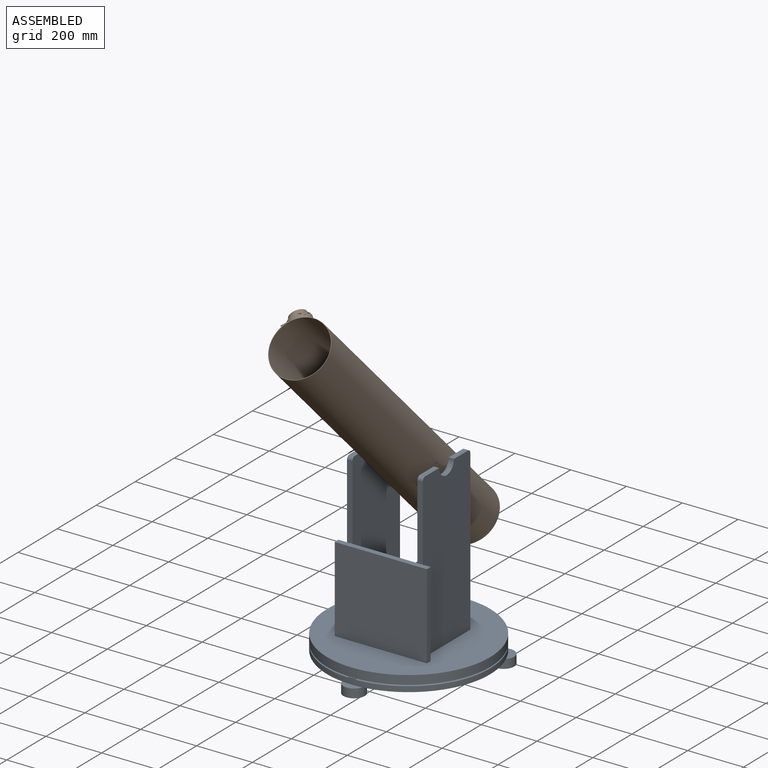
[diagram: assembled view]
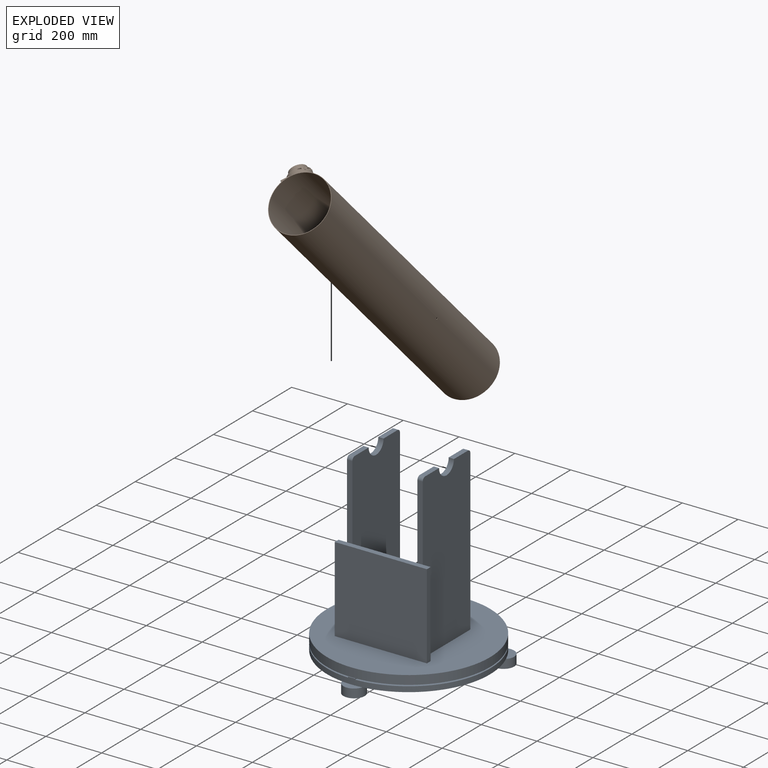
[diagram: exploded view]
GUIDED TOUR — FREECAD ASSEMBLY "SMAS_DOB_6inch"

This assembly has 2 components, labeled P0..P1 below (a component is one placed body or linked part; the same part can appear more than once), held together by 0 modeled joints plus 1 derived contact edge. A joint is a constraint between two components; its type names the relative motion it leaves free:
  CONTACT — a derived adjacency edge — the two components touch in the source model (clearance under 2% of the assembly's diagonal); it is measured from the geometry, not a modeled constraint.
Axis/direction vectors are unit vectors and 'through' points are millimeter coordinates, both in the assembly's world frame.

MATES
  1. CONTACT "contact_0_1": P0 <-> P1, contact direction (0.000, 0.000, 1.000) through (109.08, -0.51, 615.84) mm (derived from contact, not a modeled constraint)

ASSEMBLY ORDER
  1. P0 — the base component [order verified]
  2. P1 [order verified]
Order-tag legend:
  [order verified] — this step's position reverses a verified removal order: the component was checked to insert without passing through the ones already placed.

Of the 2 components, 2 carry a construction recipe — the FreeCAD feature program (sketches with constraints, then the solid features that consume them) that regenerates the part from scratch, quoted from this document or from the linked companion document it references; the rest are supplied as boundary geometry only. The tour below walks the components in assembly order: each is shown spotlighted twice — in the assembled view, then in the exploded view, where a leader line traces a displaced component back to its assembled socket (components that stay in place when exploded have no leader line; saturated green if recipe-attached, orange if geometry-only; every other component desaturated gray) — followed by its recipe or geometry summary and the mates that hold it.
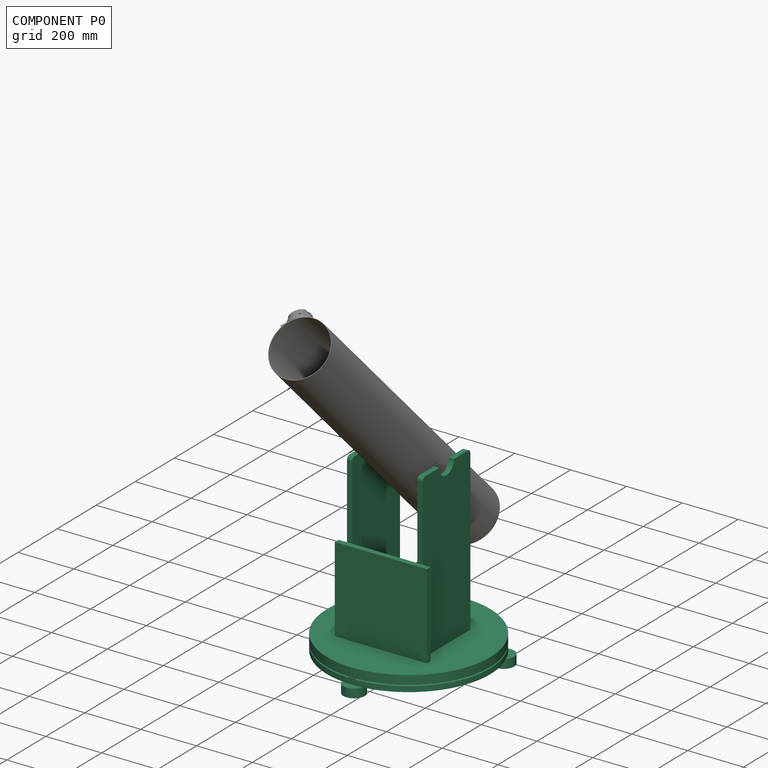
[diagram: component P0 — assembled]
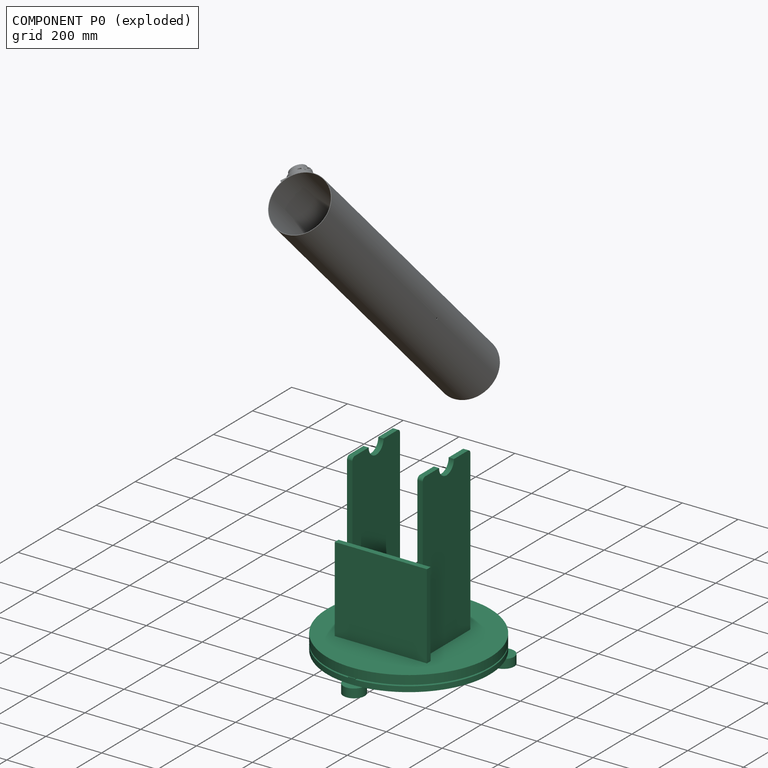
[diagram: component P0 — exploded]
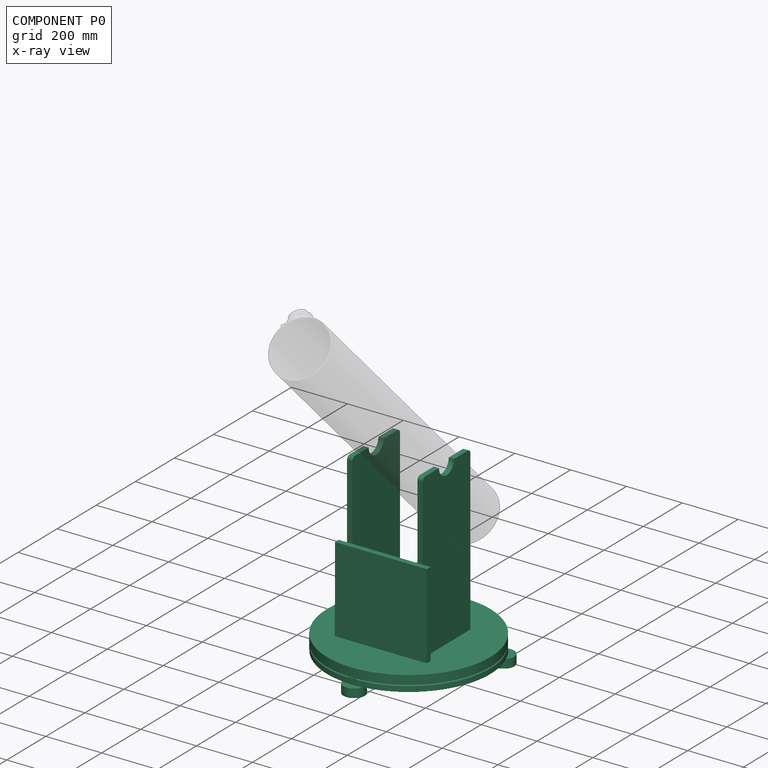
[diagram: component P0 — x-ray view]
COMPONENT P0 — recipe-attached ("Part_Base001", modeled in this document).
Held by: resting contact with P1 (derived edge).
Construction recipe (the document's own serialized feature program — sketch geometry with constraints, then the solid features built on it; lengths are millimeters unless a unit is written):

FEATURE [Sketcher::SketchObject] Sketch003
  ArcFitTolerance = 1e-06
  AttachmentSupport = -> [XY_Plane006]
  FullyConstrained = true
  MakeInternals = false
  MapMode = 5
  expr: Constraints[1] = <<Spreadsheet_OTA_Dob>>.GroundBoardDiameter
  expr: Constraints[3] = <<Spreadsheet_OTA_Dob>>.CenterHoleDiameter
  sketch-geometry (2):
    g0: Circle CenterX=0 CenterY=0 CenterZ=0 NormalX=0 NormalY=0 NormalZ=1 AngleXU=0 Radius=292.1
    g1: Circle CenterX=0 CenterY=0 CenterZ=0 NormalX=0 NormalY=0 NormalZ=1 AngleXU=0 Radius=6.35
  constraints (4):
    c: Coincident(g0,g-1)
    c: Diameter(g0) = 584.2
    c: Coincident(g1,g0)
    c: Diameter(g1) = 12.7
FEATURE [PartDesign::Pad] Pad003  label="PadGroundBoard"
  Direction = (0,0,1)
  Length = 19.05
  Length2 = 10
  Profile = -> Sketch003
  ReferenceAxis = -> Sketch003 [N_Axis]
  Suppressed = false
  Type = 0
  expr: Length = <<Spreadsheet_OTA_Dob>>.GroundBoardThickness
FEATURE [Sketcher::SketchObject] Sketch004
  ArcFitTolerance = 1e-06
  AttachmentSupport = -> [Pad003]
  FullyConstrained = true
  MakeInternals = false
  MapMode = 5
  Placement = pos=(0,0,0) rot=(1,0,0;3.14159rad)
  expr: Constraints[14] = <<Spreadsheet_OTA_Dob>>.FeetDiamter
  expr: Constraints[9] = Spreadsheet.FeetCircleDiamater
  sketch-geometry (7):
    g0: LineSegment [constr] StartX=-241.967 StartY=-139.7 StartZ=0 EndX=241.967 EndY=-139.7 EndZ=0
    g1: LineSegment [constr] StartX=241.967 StartY=-139.7 StartZ=0 EndX=0 EndY=279.4 EndZ=0
    g2: LineSegment [constr] StartX=0 StartY=279.4 StartZ=0 EndX=-241.967 EndY=-139.7 EndZ=0
    g3: Circle [constr] CenterX=0 CenterY=0 CenterZ=0 NormalX=0 NormalY=0 NormalZ=1 AngleXU=0 Radius=279.4
    g4: Circle CenterX=0 CenterY=279.4 CenterZ=0 NormalX=0 NormalY=0 NormalZ=1 AngleXU=0 Radius=38.1
    g5: Circle CenterX=241.967 CenterY=-139.7 CenterZ=0 NormalX=0 NormalY=0 NormalZ=1 AngleXU=0 Radius=38.1
    g6: Circle CenterX=-241.967 CenterY=-139.7 CenterZ=0 NormalX=0 NormalY=0 NormalZ=1 AngleXU=0 Radius=38.1
  constraints (17):
    c: Coincident(g0,g1)
    c: Coincident(g1,g2)
    c: Coincident(g2,g0)
    c: Equal(g0,g1)
    c: Equal(g0,g2)
    c: PointOnObject(g0,g3)
    c: PointOnObject(g1,g3)
    c: PointOnObject(g2,g3)
    c: Coincident(g3,g-1)
    c: Diameter(g3) = 558.8
    c: Horizontal(g0)
    c: Coincident(g4,g1)
    c: Coincident(g5,g0)
    c: Coincident(g6,g0)
    c: Diameter(g4) = 76.2
    c: Equal(g4,g6)
    c: Equal(g6,g5)
FEATURE [PartDesign::Pad] Pad004  label="PadFeet"
  BaseFeature = -> Pad003
  Direction = (0,0,-1)
  Length = 31.75
  Length2 = 10
  Profile = -> Sketch004
  ReferenceAxis = -> Sketch004 [N_Axis]
  Suppressed = false
  Type = 0
  expr: Length = <<Spreadsheet_OTA_Dob>>.FeetThickness
FEATURE [Sketcher::SketchObject] Sketch005
  ArcFitTolerance = 1e-06
  AttachmentSupport = -> [Pad004]
  FullyConstrained = true
  MakeInternals = false
  MapMode = 5
  Placement = pos=(0,0,19.05) rot=(0,0,1;0rad)
  expr: Constraints[52] = <<Spreadsheet_OTA_Dob>>.FeetCircleDiamater
  sketch-geometry (19):
    g0: LineSegment [constr] StartX=241.967 StartY=139.7 StartZ=0 EndX=-241.967 EndY=139.7 EndZ=0
    g1: LineSegment [constr] StartX=-241.967 StartY=139.7 StartZ=0 EndX=-2.84e-14 EndY=-279.4 EndZ=0
    g2: LineSegment [constr] StartX=-3.84e-14 StartY=-279.4 StartZ=0 EndX=241.967 EndY=139.7 EndZ=0
    g3: Circle [constr] CenterX=0 CenterY=0 CenterZ=0 NormalX=0 NormalY=0 NormalZ=1 AngleXU=0 Radius=279.4
    g4: LineSegment StartX=-237.319 StartY=122.351 StartZ=0 EndX=-224.619 EndY=144.349 EndZ=0
    g5: LineSegment StartX=-224.619 StartY=144.349 StartZ=0 EndX=-246.616 EndY=157.049 EndZ=0
    g6: LineSegment StartX=-246.616 StartY=157.049 StartZ=0 EndX=-259.316 EndY=135.051 EndZ=0
    g7: LineSegment StartX=-259.316 StartY=135.051 StartZ=0 EndX=-237.319 EndY=122.351 EndZ=0
    g8: Circle [constr] CenterX=-241.967 CenterY=139.7 CenterZ=0 NormalX=0 NormalY=0 NormalZ=1 AngleXU=0 Radius=17.9605
    g9: LineSegment StartX=237.319 StartY=122.351 StartZ=0 EndX=259.316 EndY=135.051 EndZ=0
    g10: LineSegment StartX=259.316 StartY=135.051 StartZ=0 EndX=246.616 EndY=157.049 EndZ=0
    g11: LineSegment StartX=246.616 StartY=157.049 StartZ=0 EndX=224.619 EndY=144.349 EndZ=0
    g12: LineSegment StartX=224.619 StartY=144.349 StartZ=0 EndX=237.319 EndY=122.351 EndZ=0
    g13: Circle [constr] CenterX=241.967 CenterY=139.7 CenterZ=0 NormalX=0 NormalY=0 NormalZ=1 AngleXU=0 Radius=17.9605
    g14: LineSegment StartX=12.7 StartY=-292.1 StartZ=0 EndX=12.7 EndY=-266.7 EndZ=0
    g15: LineSegment StartX=12.7 StartY=-266.7 StartZ=0 EndX=-12.7 EndY=-266.7 EndZ=0
    g16: LineSegment StartX=-12.7 StartY=-266.7 StartZ=0 EndX=-12.7 EndY=-292.1 EndZ=0
    g17: LineSegment StartX=-12.7 StartY=-292.1 StartZ=0 EndX=12.7 EndY=-292.1 EndZ=0
    g18: Circle [constr] CenterX=-3.84e-14 CenterY=-279.4 CenterZ=0 NormalX=0 NormalY=0 NormalZ=1 AngleXU=0 Radius=17.9605
  constraints (53):
    c: Coincident(g0,g1)
    c: Coincident(g1,g2)
    c: Coincident(g2,g0)
    c: Equal(g0,g1)
    c: Equal(g0,g2)
    c: PointOnObject(g0,g3)
    c: PointOnObject(g1,g3)
    c: PointOnObject(g2,g3)
    c: Coincident(g3,g-1)
    c: Horizontal(g0)
    c: Coincident(g4,g5)
    c: Coincident(g5,g6)
    c: Coincident(g6,g7)
    c: Coincident(g7,g4)
    c: Equal(g4,g5)
    c: Equal(g4,g6)
    c: Equal(g4,g7)
    c: PointOnObject(g4,g8)
    c: PointOnObject(g5,g8)
    c: PointOnObject(g6,g8)
    c: PointOnObject(g7,g8)
    c: Coincident(g8,g0)
    c: Coincident(g9,g10)
    c: Coincident(g10,g11)
    c: Coincident(g11,g12)
    c: Coincident(g12,g9)
    c: Equal(g9,g10)
    c: Equal(g9,g11)
    c: Equal(g9,g12)
    c: PointOnObject(g9,g13)
    c: PointOnObject(g10,g13)
    c: PointOnObject(g11,g13)
    c: PointOnObject(g12,g13)
    c: Coincident(g13,g0)
    c: Coincident(g14,g15)
    c: Coincident(g15,g16)
    c: Coincident(g16,g17)
    c: Coincident(g17,g14)
    c: Equal(g14,g15)
    c: Equal(g14,g16)
    c: Equal(g14,g17)
    c: PointOnObject(g14,g18)
    c: PointOnObject(g15,g18)
    c: PointOnObject(g16,g18)
    c: PointOnObject(g17,g18)
    c: Coincident(g18,g1)
    c: Horizontal(g15)
    c: Angle(g12) = -1.0472
    c: Angle(g4) = 1.0472
    c: Equal(g6,g10)
    c: Equal(g10,g17)
    c: DistanceX(g17,g17) = 25.4
    c: Diameter(g3) = 558.8
FEATURE [PartDesign::Pad] Pad005  label="PadTeflonFeet"
  BaseFeature = -> Pad004
  Direction = (0,0,1)
  Length = 3.175
  Length2 = 10
  Profile = -> Sketch005
  ReferenceAxis = -> Sketch005 [N_Axis]
  Suppressed = false
  Type = 0
FEATURE [PartDesign::Body] Body003  label="Body_GroundBoard"
  AllowCompound = false
  Group = -> [Sketch003,Pad003,Sketch004,Pad004,Sketch005,Pad005]
  Origin = -> Origin006
  Tip = -> Pad005
FEATURE [Sketcher::SketchObject] Sketch006
  ArcFitTolerance = 1e-06
  AttachmentSupport = -> [XY_Plane007]
  FullyConstrained = true
  MakeInternals = false
  MapMode = 5
  expr: Constraints[1] = <<Spreadsheet_OTA_Dob>>.RockerBottomDiamter
  expr: Constraints[3] = <<Spreadsheet_OTA_Dob>>.CenterHoleDiameter
  sketch-geometry (2):
    g0: Circle CenterX=0 CenterY=0 CenterZ=0 NormalX=0 NormalY=0 NormalZ=1 AngleXU=0 Radius=292.1
    g1: Circle CenterX=0 CenterY=0 CenterZ=0 NormalX=0 NormalY=0 NormalZ=1 AngleXU=0 Radius=6.35
  constraints (4):
    c: Coincident(g0,g-1)
    c: Diameter(g0) = 584.2
    c: Coincident(g1,g0)
    c: Diameter(g1) = 12.7
FEATURE [PartDesign::Pad] Pad006  label="Pad_RockerBottom"
  Direction = (0,0,1)
  Length = 31.75
  Length2 = 10
  Profile = -> Sketch006
  ReferenceAxis = -> Sketch006 [N_Axis]
  Suppressed = false
  Type = 0
  expr: Length = <<Spreadsheet_OTA_Dob>>.RockerBottomThickness
FEATURE [PartDesign::Body] Body004  label="Body_RockerBottom"
  AllowCompound = false
  Group = -> [Sketch006,Pad006]
  Origin = -> Origin007
  Placement = pos=(0,0,23.622) rot=(0,0,1;0rad)
  Tip = -> Pad006
FEATURE [Sketcher::SketchObject] Sketch007
  ArcFitTolerance = 1e-06
  AttachmentSupport = -> [YZ_Plane008]
  FullyConstrained = false
  MakeInternals = false
  MapMode = 5
  Placement = pos=(0,0,0) rot=(0.57735,0.57735,0.57735;2.0944rad)
  expr: Constraints[14] = <<Spreadsheet_OTA_Dob>>.RockerSideHeight
  expr: Constraints[15] = <<Spreadsheet_OTA_Dob>>.RockerSideWidth
  expr: Constraints[16] = <<Spreadsheet_OTA_Dob>>.AltitudeBeringCradelDiamter
  sketch-geometry (6):
    g0: LineSegment StartX=-121.92 StartY=563.165 StartZ=0 EndX=-121.92 EndY=-21.0347 EndZ=0
    g1: LineSegment StartX=-121.92 StartY=-21.0347 StartZ=0 EndX=121.92 EndY=-21.0347 EndZ=0
    g2: LineSegment StartX=121.92 StartY=-21.0347 StartZ=0 EndX=121.92 EndY=563.165 EndZ=0
    g3: LineSegment StartX=121.92 StartY=563.165 StartZ=0 EndX=38.1 EndY=563.165 EndZ=0
    g4: ArcOfCircle CenterX=-1.7e-15 CenterY=563.165 CenterZ=0 NormalX=0 NormalY=0 NormalZ=1 AngleXU=0 Radius=38.1 StartAngle=3.14159 EndAngle=6.28319
    g5: LineSegment StartX=-38.1 StartY=563.165 StartZ=0 EndX=-121.92 EndY=563.165 EndZ=0
  constraints (17):
    c: Coincident(g0,g1)
    c: Coincident(g1,g2)
    c: Coincident(g2,g3)
    c: Coincident(g5,g0)
    c: Vertical(g0)
    c: Vertical(g2)
    c: Horizontal(g1)
    c: Symmetric(g2,g0,g-2)
    c: Symmetric(g3,g5,g4)
    c: PointOnObject(g4,g5)
    c: Coincident(g3,g4)
    c: PointOnObject(g5,g4)
    c: Equal(g5,g3)
    c: Horizontal(g5)
    c: DistanceY(g0,g0) = 584.2
    c: DistanceX(g1,g1) = 243.84
    c: Radius(g4) = 38.1
FEATURE [PartDesign::Pad] Pad007
  Direction = (1,0,0)
  Length = 19.05
  Length2 = 10
  Placement = pos=(0,0,0) rot=(1,1,1;2.0944rad)
  Profile = -> Sketch007
  ReferenceAxis = -> Sketch007 [N_Axis]
  Suppressed = false
  Type = 0
  expr: Length = <<Spreadsheet_OTA_Dob>>.RockerSideThickness
FEATURE [Sketcher::SketchObject] Sketch008
  ArcFitTolerance = 1e-06
  AttachmentSupport = -> [XZ_Plane010]
  FullyConstrained = false
  MakeInternals = false
  MapMode = 5
  Placement = pos=(0,0,0) rot=(1,0,0;1.5708rad)
  expr: Constraints[7] = <<Spreadsheet_OTA_Dob>>.RockerBoxFrontHeight
  expr: Constraints[8] = <<Spreadsheet_OTA_Dob>>.RockerBoxFrontWidth
  sketch-geometry (4):
    g0: LineSegment StartX=-165.1 StartY=369.173 StartZ=0 EndX=-165.1 EndY=64.3727 EndZ=0
    g1: LineSegment StartX=-165.1 StartY=64.3727 StartZ=0 EndX=165.1 EndY=64.3727 EndZ=0
    g2: LineSegment StartX=165.1 StartY=64.3727 StartZ=0 EndX=165.1 EndY=369.173 EndZ=0
    g3: LineSegment StartX=165.1 StartY=369.173 StartZ=0 EndX=-165.1 EndY=369.173 EndZ=0
  constraints (10):
    c: Coincident(g0,g1)
    c: Coincident(g1,g2)
    c: Coincident(g2,g3)
    c: Coincident(g3,g0)
    c: Vertical(g0)
    c: Vertical(g2)
    c: Horizontal(g1)
    c: DistanceY(g0,g0) = 304.8
    c: DistanceX(g3,g3) = 330.2
    c: Symmetric(g0,g2,g-2)
FEATURE [PartDesign::Pad] Pad008
  Direction = (0,-1,2e-16)
  Length = 19.05
  Length2 = 10
  Placement = pos=(0,0,0) rot=(1,0,0;1.5708rad)
  Profile = -> Sketch008
  ReferenceAxis = -> Sketch008 [N_Axis]
  Suppressed = false
  Type = 0
  expr: Length = <<Spreadsheet_OTA_Dob>>.RockerBoxFrontThickness
FEATURE [PartDesign::Body] Body007  label="Body_RockerBoxFront"
  AllowCompound = false
  Group = -> [Sketch008,Pad008]
  Origin = -> Origin010
  Placement = pos=(0,-123.444,-8.636) rot=(0,0,1;0rad)
  Tip = -> Pad008
FEATURE [PartDesign::Fillet] Fillet
  Base = -> Pad007 [Edge1,Edge8]
  BaseFeature = -> Pad007
  Placement = pos=(0,0,0) rot=(1,1,1;2.0944rad)
  Radius = 12.7
  SupportTransform = false
  Suppressed = false
  UseAllEdges = false
FEATURE [PartDesign::Body] Body005  label="Body_BaseLeftSide"
  AllowCompound = false
  Group = -> [Sketch007,Pad007,Fillet]
  Origin = -> Origin008
  Placement = pos=(-135.636,0,76.454) rot=(0,0,1;0rad)
  Tip = -> Fillet
FEATURE [PartDesign::FeatureBase] Clone
  BaseFeature = -> Body005
  Placement = pos=(161.798,0,0) rot=(0,0,1;0rad)
  Suppressed = false
FEATURE [PartDesign::Body] Body006  label="Body_BaseRightSide"
  AllowCompound = false
  Group = -> [Clone]
  Origin = -> Origin009
  Placement = pos=(-45.212,0,77.47) rot=(0,0,1;0rad)
  Tip = -> Clone
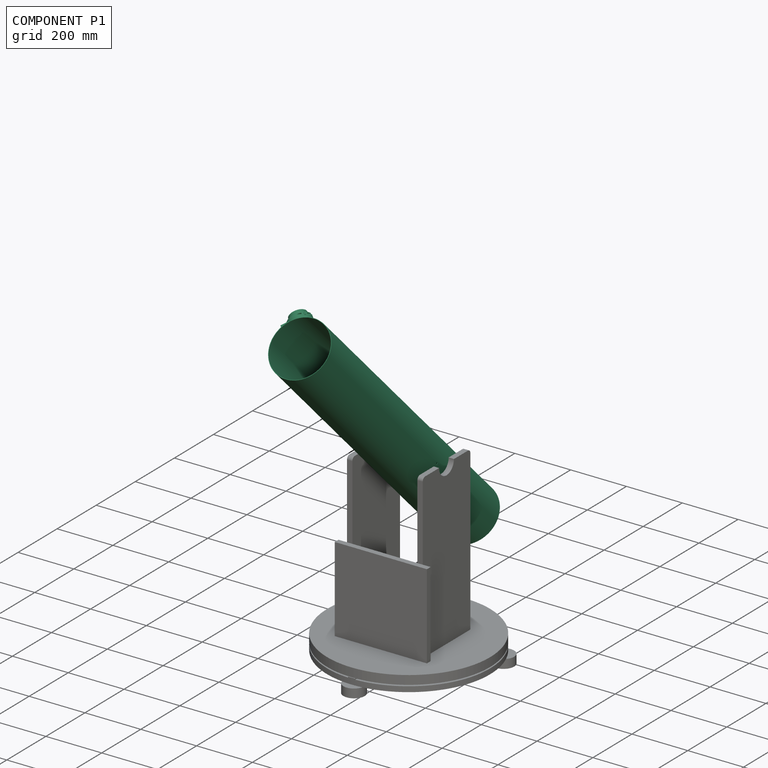
[diagram: component P1 — assembled]
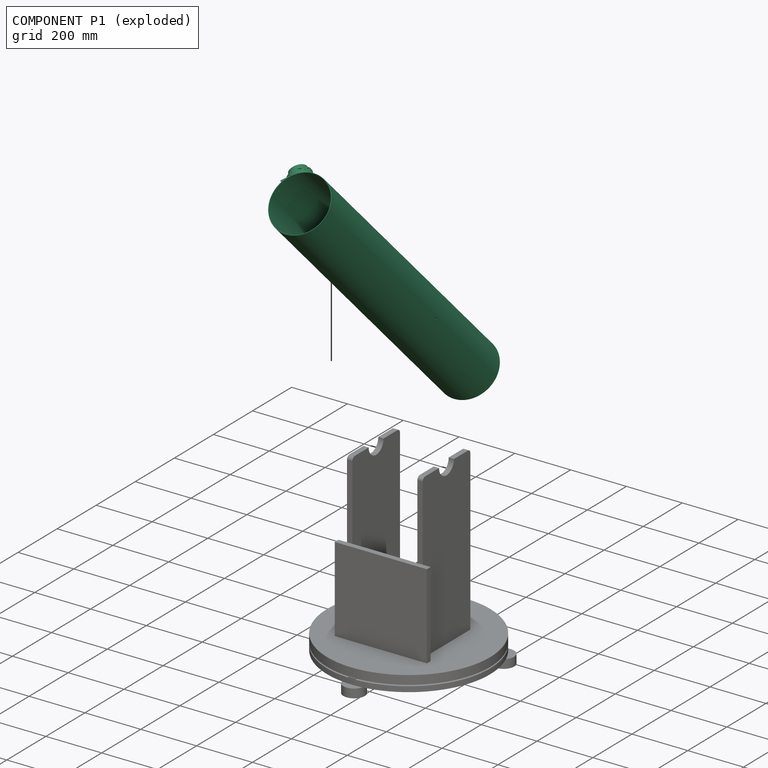
[diagram: component P1 — exploded]
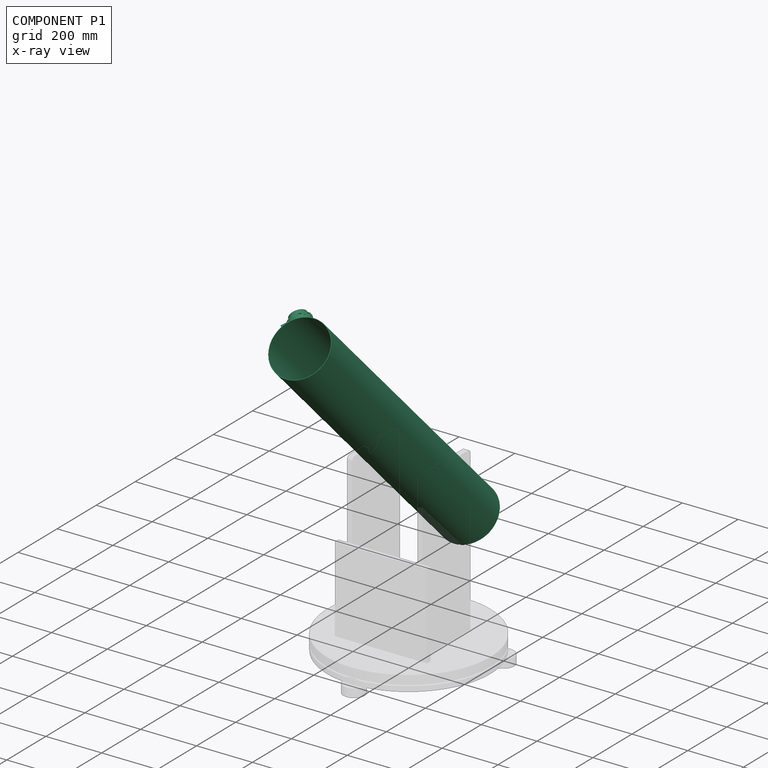
[diagram: component P1 — x-ray view]
COMPONENT P1 — recipe-attached ("Part_OTA_Dob001", modeled in this document).
Held by: resting contact with P0 (derived edge).
Construction recipe (the document's own serialized feature program — sketch geometry with constraints, then the solid features built on it; lengths are millimeters unless a unit is written):

FEATURE [Sketcher::SketchObject] Sketch
  ArcFitTolerance = 1e-06
  AttachmentSupport = -> [XY_Plane001]
  FullyConstrained = true
  MakeInternals = false
  MapMode = 5
  expr: Constraints[2] = <<Spreadsheet_OTA_Dob>>.OD
  expr: Constraints[3] = <<Spreadsheet_OTA_Dob>>.ID
  sketch-geometry (2):
    g0: Circle CenterX=0 CenterY=0 CenterZ=0 NormalX=0 NormalY=0 NormalZ=1 AngleXU=0 Radius=101.6
    g1: Circle CenterX=0 CenterY=0 CenterZ=0 NormalX=0 NormalY=0 NormalZ=1 AngleXU=0 Radius=100.012
  constraints (4):
    c: Coincident(g0,g-1)
    c: Coincident(g1,g0)
    c: Diameter(g0) = 203.2
    c: Diameter(g1) = 200.025
FEATURE [PartDesign::Pad] Pad  label="Pad_Tube"
  Direction = (0,0,1)
  Length = 1219.2
  Length2 = 10
  Profile = -> Sketch
  ReferenceAxis = -> Sketch [N_Axis]
  Suppressed = false
  Type = 0
  expr: Length = <<Spreadsheet_OTA_Dob>>.Length
FEATURE [Sketcher::SketchObject] Sketch001
  ArcFitTolerance = 1e-06
  AttachmentSupport = -> [XY_Plane002]
  FullyConstrained = true
  MakeInternals = false
  MapMode = 5
  expr: Constraints[12] = <<Spreadsheet_OTA_Dob>>.CellMountDiameter
  expr: Constraints[16] = <<Spreadsheet_OTA_Dob>>.MirrorTailgateHole
  expr: Constraints[1] = <<Spreadsheet_OTA_Dob>>.ID
  sketch-geometry (8):
    g0: Circle CenterX=0 CenterY=0 CenterZ=0 NormalX=0 NormalY=0 NormalZ=1 AngleXU=0 Radius=100.012
    g1: LineSegment [constr] StartX=49.4934 StartY=-28.575 StartZ=0 EndX=-7.1e-15 EndY=57.15 EndZ=0
    g2: LineSegment [constr] StartX=-7.1e-15 StartY=57.15 StartZ=0 EndX=-49.4934 EndY=-28.575 EndZ=0
    g3: LineSegment [constr] StartX=-49.4934 StartY=-28.575 StartZ=0 EndX=49.4934 EndY=-28.575 EndZ=0
    g4: Circle [constr] CenterX=0 CenterY=0 CenterZ=0 NormalX=0 NormalY=0 NormalZ=1 AngleXU=0 Radius=57.15
    g5: Circle CenterX=-7.1e-15 CenterY=57.15 CenterZ=0 NormalX=0 NormalY=0 NormalZ=1 AngleXU=0 Radius=4.7625
    g6: Circle CenterX=-49.4934 CenterY=-28.575 CenterZ=0 NormalX=0 NormalY=0 NormalZ=1 AngleXU=0 Radius=4.7625
    g7: Circle CenterX=49.4934 CenterY=-28.575 CenterZ=0 NormalX=0 NormalY=0 NormalZ=1 AngleXU=0 Radius=4.7625
  constraints (19):
    c: Coincident(g0,g-1)
    c: Diameter(g0) = 200.025
    c: Coincident(g1,g2)
    c: Coincident(g2,g3)
    c: Coincident(g3,g1)
    c: Equal(g1,g2)
    c: Equal(g1,g3)
    c: PointOnObject(g1,g4)
    c: PointOnObject(g2,g4)
    c: PointOnObject(g3,g4)
    c: Coincident(g4,g0)
    c: Horizontal(g3)
    c: Diameter(g4) = 114.3
    c: Coincident(g5,g1)
    c: Coincident(g6,g2)
    c: Coincident(g7,g1)
    c: Diameter(g5) = 9.525
    c: Equal(g6,g7)
    c: Equal(g7,g5)
FEATURE [PartDesign::Pad] Pad001  label="Pad_MirrorTailgate"
  Direction = (0,0,1)
  Length = 19.05
  Length2 = 10
  Profile = -> Sketch001
  ReferenceAxis = -> Sketch001 [N_Axis]
  Suppressed = false
  Type = 0
  expr: Length = <<Spreadsheet_OTA_Dob>>.MirrorTailgateThickness
FEATURE [PartDesign::Body] Body001  label="Body_MirrorTailgate"
  AllowCompound = false
  Group = -> [Sketch001,Pad001]
  Origin = -> Origin002
  Tip = -> Pad001
FEATURE [Sketcher::SketchObject] Sketch002
  ArcFitTolerance = 1e-06
  AttachmentSupport = -> [XY_Plane004]
  FullyConstrained = true
  MakeInternals = false
  MapMode = 5
  expr: Constraints[1] = <<Spreadsheet_OTA_Dob>>.Mirror_Diameter
  sketch-geometry (1):
    g0: Circle CenterX=0 CenterY=0 CenterZ=0 NormalX=0 NormalY=0 NormalZ=1 AngleXU=0 Radius=76.2
  constraints (2):
    c: Coincident(g0,g-1)
    c: Diameter(g0) = 152.4
FEATURE [PartDesign::Pad] Pad002
  Direction = (0,0,1)
  Length = 19.05
  Length2 = 10
  Profile = -> Sketch002
  ReferenceAxis = -> Sketch002 [N_Axis]
  Suppressed = false
  Type = 0
  expr: Length = <<Spreadsheet_OTA_Dob>>.MirrorThickness
FEATURE [PartDesign::Body] Body002  label="Body_Mirror"
  AllowCompound = false
  Group = -> [Sketch002,Pad002]
  Origin = -> Origin004
  Placement = pos=(0,0,63.246) rot=(0,0,1;0rad)
  Tip = -> Pad002
FEATURE [Sketcher::SketchObject] Sketch009
  ArcFitTolerance = 1e-06
  AttachmentSupport = -> [YZ_Plane001]
  FullyConstrained = true
  MakeInternals = false
  MapMode = 5
  Placement = pos=(0,0,0) rot=(0.57735,0.57735,0.57735;2.0944rad)
  expr: Constraints[0] = <<Spreadsheet_OTA_Dob>>.LengthToPiviot
  expr: Constraints[2] = <<Spreadsheet_OTA_Dob>>.PivotHoleDiameter
  sketch-geometry (1):
    g0: Circle CenterX=0 CenterY=431.8 CenterZ=0 NormalX=0 NormalY=0 NormalZ=1 AngleXU=0 Radius=3.175
  constraints (3):
    c: DistanceY(g-1,g0) = 431.8
    c: Vertical(g0,g-1)
    c: Diameter(g0) = 6.35
FEATURE [PartDesign::Pocket] Pocket  label="Pocket_PivotHole"
  BaseFeature = -> Pad
  Direction = (-1,0,0)
  Length = 5
  Length2 = 5
  Midplane = true
  Profile = -> Sketch009
  ReferenceAxis = -> Sketch009 [N_Axis]
  Suppressed = false
  Type = 1
FEATURE [PartDesign::Body] Body  label="Body_Tube"
  AllowCompound = false
  Group = -> [Sketch,Pad,Sketch009,Pocket]
  Origin = -> Origin001
  Tip = -> Pocket
FEATURE [Sketcher::SketchObject] Sketch010
  ArcFitTolerance = 1e-06
  AttachmentSupport = -> [XY_Plane012]
  FullyConstrained = true
  MakeInternals = false
  MapMode = 5
  expr: Constraints[0] = <<Spreadsheet_OTA_Dob>>.Mirror_Diameter
  expr: Constraints[12] = <<Spreadsheet_OTA_Dob>>.CellMountDiameter
  expr: Constraints[18] = <<Spreadsheet_OTA_Dob>>.CellScrewDiamter
  sketch-geometry (8):
    g0: Circle CenterX=0 CenterY=0 CenterZ=0 NormalX=0 NormalY=0 NormalZ=1 AngleXU=0 Radius=76.2
    g1: Circle CenterX=2.27729e-11 CenterY=57.15 CenterZ=0 NormalX=0 NormalY=0 NormalZ=1 AngleXU=0 Radius=3.175
    g2: Circle CenterX=49.4934 CenterY=-28.575 CenterZ=0 NormalX=0 NormalY=0 NormalZ=1 AngleXU=0 Radius=3.175
    g3: Circle CenterX=-49.4934 CenterY=-28.575 CenterZ=0 NormalX=0 NormalY=0 NormalZ=1 AngleXU=0 Radius=3.175
    g4: LineSegment [constr] StartX=49.4934 StartY=-28.575 StartZ=0 EndX=2.27729e-11 EndY=57.15 EndZ=0
    g5: LineSegment [constr] StartX=2.27729e-11 StartY=57.15 StartZ=0 EndX=-49.4934 EndY=-28.575 EndZ=0
    g6: LineSegment [constr] StartX=-49.4934 StartY=-28.575 StartZ=0 EndX=49.4934 EndY=-28.575 EndZ=0
    g7: Circle [constr] CenterX=0 CenterY=0 CenterZ=0 NormalX=0 NormalY=0 NormalZ=1 AngleXU=0 Radius=57.15
  constraints (19):
    c: Diameter(g0) = 152.4
    c: Coincident(g-1,g0)
    c: Coincident(g4,g5)
    c: Coincident(g5,g6)
    c: Coincident(g6,g4)
    c: Equal(g4,g5)
    c: Equal(g4,g6)
    c: PointOnObject(g4,g7)
    c: PointOnObject(g5,g7)
    c: PointOnObject(g6,g7)
    c: Coincident(g7,g0)
    c: Horizontal(g6)
    c: Diameter(g7) = 114.3
    c: Coincident(g1,g4)
    c: Coincident(g4,g2)
    c: Coincident(g5,g3)
    c: Equal(g3,g1)
    c: Equal(g1,g2)
    c: Diameter(g1) = 6.35
FEATURE [PartDesign::Pad] Pad009  label="PadMirroCell"
  Direction = (0,0,1)
  Length = 19.05
  Length2 = 10
  Profile = -> Sketch010
  ReferenceAxis = -> Sketch010 [N_Axis]
  Suppressed = false
  Type = 0
  expr: Length = <<Spreadsheet_OTA_Dob>>.MirrorCellThickness
FEATURE [Sketcher::SketchObject] Sketch011
  ArcFitTolerance = 1e-06
  AttachmentOffset = pos=(0,0,19.05) rot=(0,0,1;0rad)
  AttachmentSupport = -> [XY_Plane012]
  FullyConstrained = true
  MakeInternals = false
  MapMode = 5
  Placement = pos=(0,0,19.05) rot=(0,0,1;0rad)
  expr: .AttachmentOffset.Base.z = <<Spreadsheet_OTA_Dob>>.MirrorCellThickness
  expr: Constraints[19] = <<Spreadsheet_OTA_Dob>>.CellMountDiameter
  expr: Constraints[31] = <<Spreadsheet_OTA_Dob>>.CellScrewHeadDiameter
  sketch-geometry (13):
    g0: LineSegment [constr] StartX=49.4934 StartY=28.575 StartZ=0 EndX=-7.1e-15 EndY=57.15 EndZ=0
    g1: LineSegment [constr] StartX=-7.1e-15 StartY=57.15 StartZ=0 EndX=-49.4934 EndY=28.575 EndZ=0
    g2: LineSegment [constr] StartX=-49.4934 StartY=28.575 StartZ=0 EndX=-49.4934 EndY=-28.575 EndZ=0
    g3: LineSegment [constr] StartX=-49.4934 StartY=-28.575 StartZ=0 EndX=0 EndY=-57.15 EndZ=0
    g4: LineSegment [constr] StartX=0 StartY=-57.15 StartZ=0 EndX=49.4934 EndY=-28.575 EndZ=0
    g5: LineSegment [constr] StartX=49.4934 StartY=-28.575 StartZ=0 EndX=49.4934 EndY=28.575 EndZ=0
    g6: Circle [constr] CenterX=0 CenterY=0 CenterZ=0 NormalX=0 NormalY=0 NormalZ=1 AngleXU=0 Radius=57.15
    g7: Circle CenterX=-7.1e-15 CenterY=57.15 CenterZ=0 NormalX=0 NormalY=0 NormalZ=1 AngleXU=0 Radius=6.35
    g8: Circle CenterX=-49.4934 CenterY=28.575 CenterZ=0 NormalX=0 NormalY=0 NormalZ=1 AngleXU=0 Radius=6.35
    g9: Circle CenterX=-49.4934 CenterY=-28.575 CenterZ=0 NormalX=0 NormalY=0 NormalZ=1 AngleXU=0 Radius=6.35
    g10: Circle CenterX=0 CenterY=-57.15 CenterZ=0 NormalX=0 NormalY=0 NormalZ=1 AngleXU=0 Radius=6.35
    g11: Circle CenterX=49.4934 CenterY=-28.575 CenterZ=0 NormalX=0 NormalY=0 NormalZ=1 AngleXU=0 Radius=6.35
    g12: Circle CenterX=49.4934 CenterY=28.575 CenterZ=0 NormalX=0 NormalY=0 NormalZ=1 AngleXU=0 Radius=6.35
  constraints (28):
    c: Coincident(g0,g1)
    c: Coincident(g1,g2)
    c: Coincident(g2,g3)
    c: Coincident(g3,g4)
    c: Coincident(g4,g5)
    c: Coincident(g5,g0)
    c: Equal(g0, g1-g5) x5
    c: PointOnObject(g0,g6)
    c: PointOnObject(g1,g6)
    c: PointOnObject(g2,g6)
    c: PointOnObject(g3,g6)
    c: PointOnObject(g4,g6)
    c: PointOnObject(g5,g6)
    c: Coincident(g6,g-1)
    c: Vertical(g5)
    c: Diameter(g6) = 114.3
    c: Coincident(g7,g0)
    c: Coincident(g8,g1)
    c: Coincident(g9,g2)
    c: Coincident(g10,g3)
    c: Coincident(g11,g4)
    c: Coincident(g12,g0)
    c: Equal(g7,g8)
    c: Equal(g8,g9)
    c: Equal(g9,g10)
    c: Equal(g10,g11)
    c: Equal(g11,g12)
    c: Diameter(g7) = 12.7
FEATURE [PartDesign::Pocket] Pocket001  label="PocketScrew&Glue"
  BaseFeature = -> Pad009
  Direction = (0,0,-1)
  Length = 3.175
  Length2 = 5
  Profile = -> Sketch011
  ReferenceAxis = -> Sketch011 [N_Axis]
  Suppressed = false
  Type = 0
  expr: Length = <<Spreadsheet_OTA_Dob>>.CellScrewHeadPocketDepth
FEATURE [PartDesign::Body] Body008  label="BodyMirrorCell"
  AllowCompound = false
  Group = -> [Sketch010,Pad009,Sketch011,Pocket001]
  Origin = -> Origin012
  Placement = pos=(0,0,33.528) rot=(0,0,1;0rad)
  Tip = -> Pocket001
PROVENANCE & LICENSES
Assembly and component geometry: a FreeCAD (.FCStd) document from a public repository crawl; components, placements and joints were extracted with FreeCAD and each solid tessellated.
Construction recipes: the document's own serialized feature recipes (and, for linked parts, the recipes of companion documents from the same project).
License: as declared in the source repository (recorded in the dataset sidecar).
Joints: native FreeCAD joints and A2plus constraints are mapped to standard mate types; edges marked 'derived from contact' connect touching components and are measured from the geometry, not modeled.
Verification: 2 of this assembly's 2 components carry a construction recipe (2 from this document itself); the rest are geometry-only. Every component's tessellation passed the extraction mesh gates (mesh-volume checksum against the B-rep where available, bounding-box inflation <= 2%).
Renders: orthographic iso camera (az 35 / el 25); the floor grid conveys scale (grid pitch printed in each image; no ruler). In the exploded view each component is displaced by its stored offset vector: the offsets alone carry the explosion direction (mate normal/axis signs are not orientation cues and do not encode it), and separation distances are assigned per mate-chain, not proportionally to assembly-order depth.
